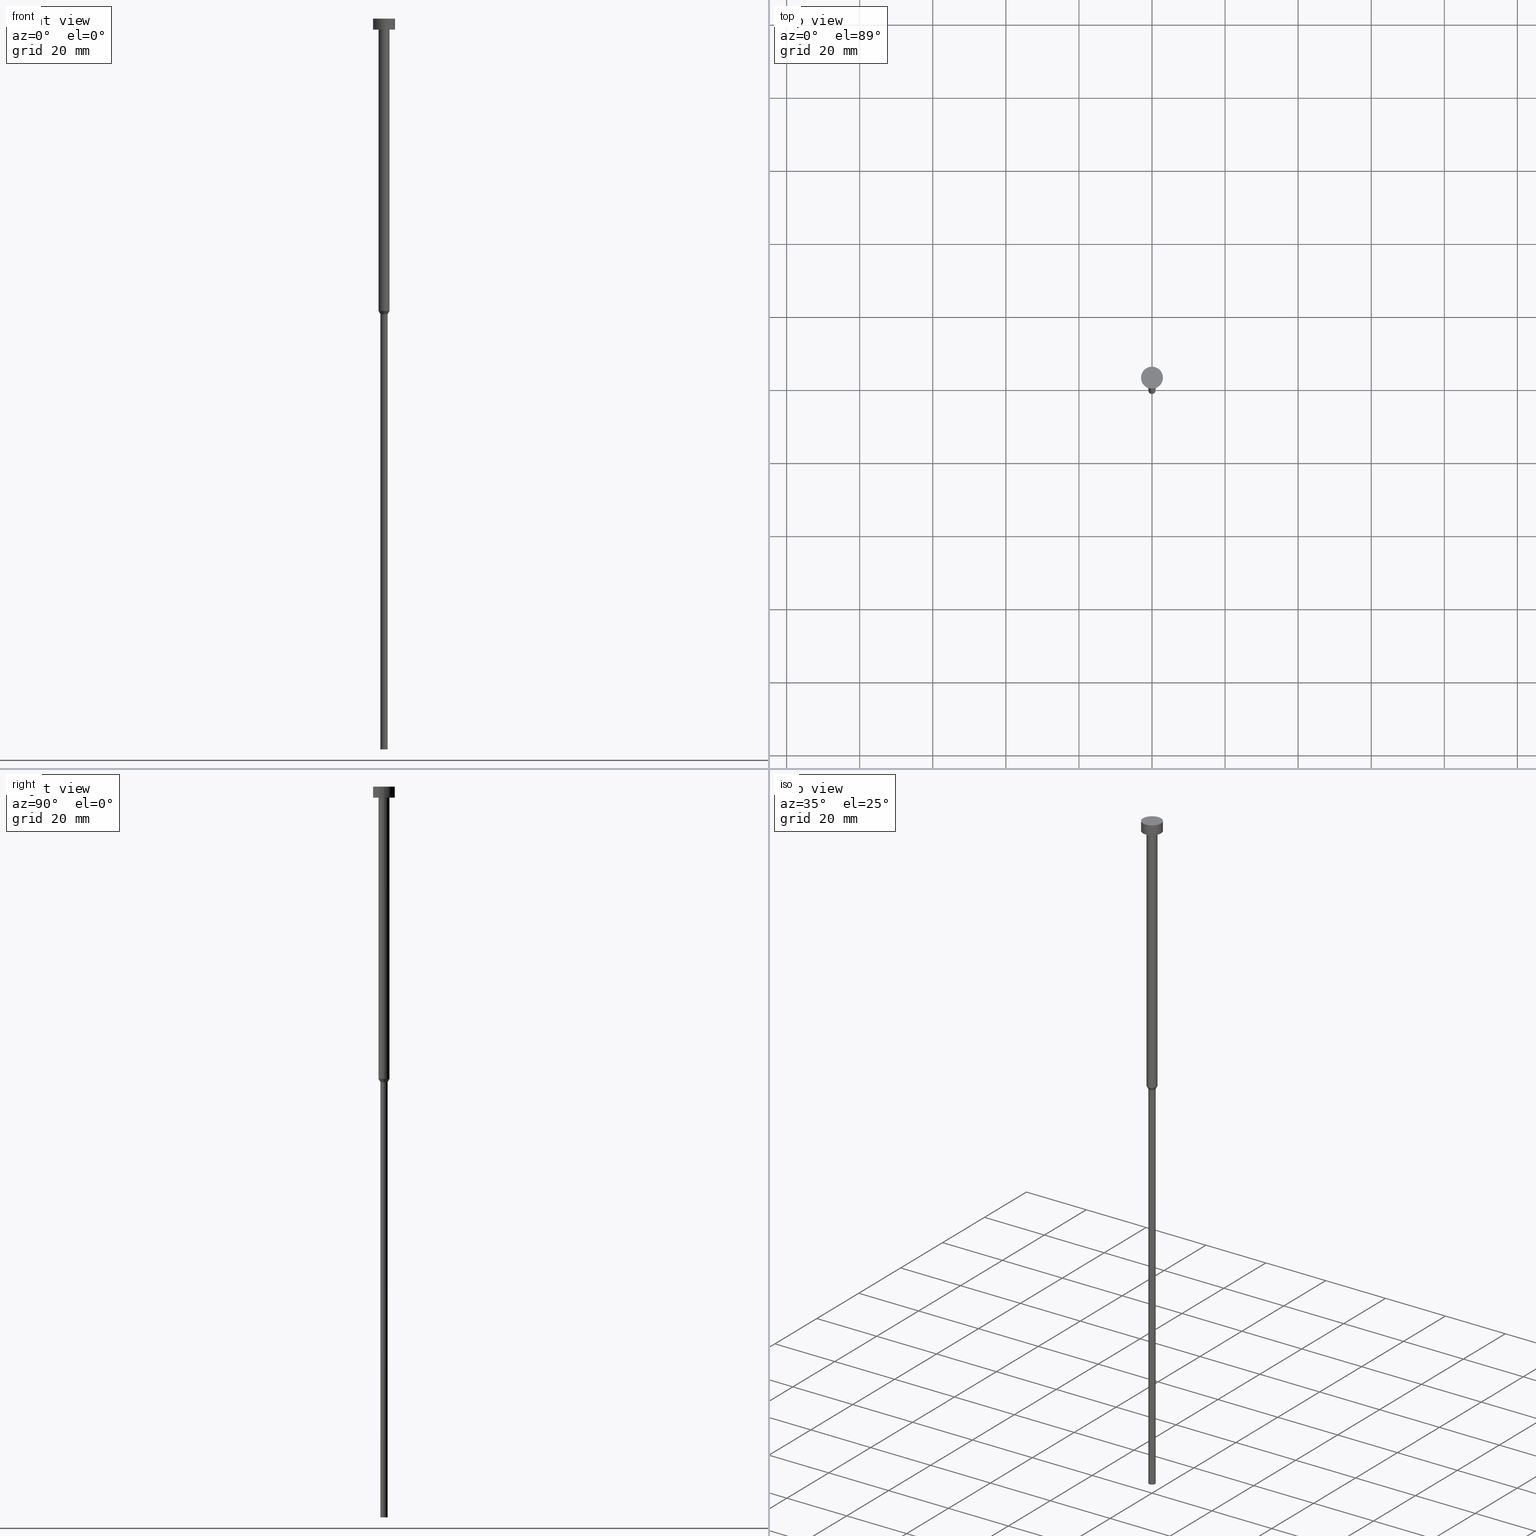
[diagram: canonical four-view strip — front | top / right | iso, engineering-drawing reading convention]
A machine part, canonical four-view strip (front | top / right | iso — engineering-drawing reading convention). The complete STEP part file that produces these views, byte-faithful:
ISO-10303-21;
HEADER;
FILE_DESCRIPTION (( 'STEP AP203' ),
    '1' );
FILE_NAME ('6f79.STEP',
    '2023-02-13T09:03:34',
    ( '' ),
    ( '' ),
    'SwSTEP 2.0',
    'SolidWorks 2019',
    '' );
FILE_SCHEMA (( 'CONFIG_CONTROL_DESIGN' ));
ENDSEC;

DATA;
#1 = DIRECTION ( 'NONE',  ( -0.000000000000000000, -0.000000000000000000, 1.000000000000000000 ) ) ;
#2 = DIRECTION ( 'NONE',  ( 1.000000000000000000, 0.000000000000000000, 0.000000000000000000 ) ) ;
#3 = DATE_TIME_ROLE ( 'creation_date' ) ;
#4 = CIRCLE ( 'NONE', #157, 1.500000000000000000 ) ;
#5 =( GEOMETRIC_REPRESENTATION_CONTEXT ( 3 ) GLOBAL_UNCERTAINTY_ASSIGNED_CONTEXT ( ( #168 ) ) GLOBAL_UNIT_ASSIGNED_CONTEXT ( ( #336, #310, #172 ) ) REPRESENTATION_CONTEXT ( 'NONE', 'WORKASPACE' ) );
#6 = VERTEX_POINT ( 'NONE', #198 ) ;
#7 = ORIENTED_EDGE ( 'NONE', *, *, #27, .F. ) ;
#8 = COORDINATED_UNIVERSAL_TIME_OFFSET ( 1, 0, .AHEAD. ) ;
#9 = EDGE_LOOP ( 'NONE', ( #236, #75 ) ) ;
#10 = CC_DESIGN_PERSON_AND_ORGANIZATION_ASSIGNMENT ( #66, #93, ( #38 ) ) ;
#11 = CIRCLE ( 'NONE', #229, 1.500000000000000000 ) ;
#12 = EDGE_LOOP ( 'NONE', ( #127, #45, #52, #292 ) ) ;
#13 = EDGE_CURVE ( 'NONE', #82, #241, #204, .T. ) ;
#14 = DIRECTION ( 'NONE',  ( -0.000000000000000000, -0.000000000000000000, 1.000000000000000000 ) ) ;
#15 = CARTESIAN_POINT ( 'NONE',  ( 3.000000000000000000, 0.000000000000000000, 0.000000000000000000 ) ) ;
#16 = FACE_OUTER_BOUND ( 'NONE', #146, .T. ) ;
#17 = ADVANCED_BREP_SHAPE_REPRESENTATION ( '6f79', ( #33, #132 ), #5 ) ;
#18 = PLANE ( 'NONE',  #215 ) ;
#19 = CARTESIAN_POINT ( 'NONE',  ( 0.000000000000000000, 0.000000000000000000, 0.000000000000000000 ) ) ;
#20 = CARTESIAN_POINT ( 'NONE',  ( 0.000000000000000000, 0.000000000000000000, -80.00000000000000000 ) ) ;
#21 = CARTESIAN_POINT ( 'NONE',  ( 1.000000000000000000, 0.000000000000000000, 0.000000000000000000 ) ) ;
#22 = PERSON ( 'NEUR�EN�', 'NEUR�EN�', 'NEUR�EN�', ('NEUR�EN�'), ('NEUR�EN�'), ('NEUR�EN�') ) ;
#23 = CC_DESIGN_DATE_AND_TIME_ASSIGNMENT ( #34, #3, ( #301 ) ) ;
#24 = DIRECTION ( 'NONE',  ( 0.000000000000000000, 0.000000000000000000, 1.000000000000000000 ) ) ;
#25 = ORIENTED_EDGE ( 'NONE', *, *, #201, .T. ) ;
#26 = ORIENTED_EDGE ( 'NONE', *, *, #101, .F. ) ;
#27 = EDGE_CURVE ( 'NONE', #133, #241, #78, .T. ) ;
#28 = FACE_OUTER_BOUND ( 'NONE', #179, .T. ) ;
#29 = PERSON_AND_ORGANIZATION ( #22, #65 ) ;
#30 = MECHANICAL_CONTEXT ( 'NONE', #187, 'mechanical' ) ;
#31 = APPLICATION_PROTOCOL_DEFINITION ( 'international standard', 'config_control_design', 1994, #245 ) ;
#32 = CIRCLE ( 'NONE', #163, 1.500000000000000000 ) ;
#33 = MANIFOLD_SOLID_BREP ( 'Rotovat1', #37 ) ;
#34 = DATE_AND_TIME ( #248, #182 ) ;
#35 = CALENDAR_DATE ( 2023, 13, 2 ) ;
#36 = CALENDAR_DATE ( 2023, 13, 2 ) ;
#37 = CLOSED_SHELL ( 'NONE', ( #238, #92, #128, #324, #338, #246, #67, #352, #210, #282, #217 ) ) ;
#38 = SECURITY_CLASSIFICATION ( '', '', #123 ) ;
#39 = FACE_OUTER_BOUND ( 'NONE', #197, .T. ) ;
#40 = FACE_OUTER_BOUND ( 'NONE', #231, .T. ) ;
#41 = COORDINATED_UNIVERSAL_TIME_OFFSET ( 1, 0, .AHEAD. ) ;
#42 = CARTESIAN_POINT ( 'NONE',  ( 1.000000000000000000, 0.000000000000000000, -80.86602540378444814 ) ) ;
#43 = DIRECTION ( 'NONE',  ( 1.000000000000000000, 0.000000000000000000, 0.000000000000000000 ) ) ;
#44 = PLANE ( 'NONE',  #355 ) ;
#45 = ORIENTED_EDGE ( 'NONE', *, *, #269, .T. ) ;
#46 = DIRECTION ( 'NONE',  ( -0.000000000000000000, -0.000000000000000000, 1.000000000000000000 ) ) ;
#47 = CARTESIAN_POINT ( 'NONE',  ( 0.000000000000000000, 0.000000000000000000, 0.000000000000000000 ) ) ;
#48 = VECTOR ( 'NONE', #74, 1000.000000000000114 ) ;
#49 = FACE_BOUND ( 'NONE', #309, .T. ) ;
#50 = DIRECTION ( 'NONE',  ( -0.000000000000000000, -0.000000000000000000, 1.000000000000000000 ) ) ;
#51 = ORIENTED_EDGE ( 'NONE', *, *, #76, .T. ) ;
#52 = ORIENTED_EDGE ( 'NONE', *, *, #181, .F. ) ;
#53 = AXIS2_PLACEMENT_3D ( 'NONE', #351, #118, #232 ) ;
#54 = DIRECTION ( 'NONE',  ( -0.000000000000000000, -0.000000000000000000, 1.000000000000000000 ) ) ;
#55 = APPROVAL_ROLE ( '' ) ;
#56 = DIRECTION ( 'NONE',  ( -0.000000000000000000, -0.000000000000000000, 1.000000000000000000 ) ) ;
#57 = VERTEX_POINT ( 'NONE', #274 ) ;
#58 = COORDINATED_UNIVERSAL_TIME_OFFSET ( 1, 0, .AHEAD. ) ;
#59 = DIRECTION ( 'NONE',  ( -0.000000000000000000, -0.000000000000000000, 1.000000000000000000 ) ) ;
#60 = APPROVAL_STATUS ( 'not_yet_approved' ) ;
#61 = EDGE_CURVE ( 'NONE', #241, #133, #316, .T. ) ;
#62 = ORIENTED_EDGE ( 'NONE', *, *, #158, .T. ) ;
#63 = SHAPE_DEFINITION_REPRESENTATION ( #306, #17 ) ;
#64 = AXIS2_PLACEMENT_3D ( 'NONE', #278, #249, #256 ) ;
#65 = ORGANIZATION ( 'NEUR�EN�', 'NEUR�EN�', '' ) ;
#66 = PERSON_AND_ORGANIZATION ( #22, #65 ) ;
#67 = ADVANCED_FACE ( 'NONE', ( #39 ), #194, .T. ) ;
#68 = ORIENTED_EDGE ( 'NONE', *, *, #334, .T. ) ;
#69 = LINE ( 'NONE', #21, #151 ) ;
#70 = AXIS2_PLACEMENT_3D ( 'NONE', #88, #331, #283 ) ;
#71 = PRODUCT_DEFINITION_FORMATION_WITH_SPECIFIED_SOURCE ( 'LIBOVOLN�', '', #171, .NOT_KNOWN. ) ;
#72 = FACE_OUTER_BOUND ( 'NONE', #111, .T. ) ;
#73 = ORIENTED_EDGE ( 'NONE', *, *, #181, .T. ) ;
#74 = DIRECTION ( 'NONE',  ( -0.4999999999999981681, 6.123233995736742617E-17, 0.8660254037844395958 ) ) ;
#75 = ORIENTED_EDGE ( 'NONE', *, *, #167, .F. ) ;
#76 = EDGE_CURVE ( 'NONE', #90, #6, #117, .T. ) ;
#77 = DIRECTION ( 'NONE',  ( -0.000000000000000000, -0.000000000000000000, 1.000000000000000000 ) ) ;
#78 = CIRCLE ( 'NONE', #102, 3.000000000000000000 ) ;
#79 = DIRECTION ( 'NONE',  ( 1.000000000000000000, 0.000000000000000000, 0.000000000000000000 ) ) ;
#80 = EDGE_CURVE ( 'NONE', #107, #133, #226, .T. ) ;
#81 = VERTEX_POINT ( 'NONE', #311 ) ;
#82 = VERTEX_POINT ( 'NONE', #203 ) ;
#83 = FACE_OUTER_BOUND ( 'NONE', #211, .T. ) ;
#84 = DIRECTION ( 'NONE',  ( -0.000000000000000000, -0.000000000000000000, 1.000000000000000000 ) ) ;
#85 = PLANE ( 'NONE',  #53 ) ;
#86 = AXIS2_PLACEMENT_3D ( 'NONE', #138, #54, #291 ) ;
#87 = APPROVAL_STATUS ( 'not_yet_approved' ) ;
#88 = CARTESIAN_POINT ( 'NONE',  ( 0.000000000000000000, 0.000000000000000000, 0.000000000000000000 ) ) ;
#89 = CC_DESIGN_PERSON_AND_ORGANIZATION_ASSIGNMENT ( #244, #122, ( #301 ) ) ;
#90 = VERTEX_POINT ( 'NONE', #42 ) ;
#91 = VECTOR ( 'NONE', #178, 1000.000000000000000 ) ;
#92 = ADVANCED_FACE ( 'NONE', ( #40 ), #254, .T. ) ;
#93 = PERSON_AND_ORGANIZATION_ROLE ( 'classification_officer' ) ;
#94 = PERSON_AND_ORGANIZATION ( #22, #65 ) ;
#95 = ORIENTED_EDGE ( 'NONE', *, *, #135, .F. ) ;
#96 = CIRCLE ( 'NONE', #304, 1.500000000000000000 ) ;
#97 = APPROVAL_DATE_TIME ( #290, #106 ) ;
#98 = DIRECTION ( 'NONE',  ( -0.000000000000000000, -0.000000000000000000, 1.000000000000000000 ) ) ;
#99 = CARTESIAN_POINT ( 'NONE',  ( 0.000000000000000000, 0.000000000000000000, -80.00000000000000000 ) ) ;
#100 = CARTESIAN_POINT ( 'NONE',  ( 1.000000000000000000, 0.000000000000000000, -200.0000000000000000 ) ) ;
#101 = EDGE_CURVE ( 'NONE', #341, #202, #206, .T. ) ;
#102 = AXIS2_PLACEMENT_3D ( 'NONE', #343, #98, #43 ) ;
#103 = EDGE_LOOP ( 'NONE', ( #153, #208, #307, #295 ) ) ;
#104 = ORIENTED_EDGE ( 'NONE', *, *, #61, .T. ) ;
#105 = LINE ( 'NONE', #327, #48 ) ;
#106 = APPROVAL ( #60, 'NEUR�EN�' ) ;
#107 = VERTEX_POINT ( 'NONE', #126 ) ;
#108 = DIRECTION ( 'NONE',  ( -0.000000000000000000, -0.000000000000000000, 1.000000000000000000 ) ) ;
#109 = EDGE_CURVE ( 'NONE', #90, #81, #273, .T. ) ;
#110 = DIRECTION ( 'NONE',  ( 1.000000000000000000, 0.000000000000000000, 0.000000000000000000 ) ) ;
#111 = EDGE_LOOP ( 'NONE', ( #257, #222, #62, #333 ) ) ;
#112 = EDGE_LOOP ( 'NONE', ( #95, #26 ) ) ;
#113 = DESIGN_CONTEXT ( 'detailed design', #245, 'design' ) ;
#114 = DIRECTION ( 'NONE',  ( 1.000000000000000000, 0.000000000000000000, 0.000000000000000000 ) ) ;
#115 = CARTESIAN_POINT ( 'NONE',  ( 0.000000000000000000, 0.000000000000000000, 0.000000000000000000 ) ) ;
#116 = CARTESIAN_POINT ( 'NONE',  ( 0.000000000000000000, 0.000000000000000000, 0.000000000000000000 ) ) ;
#117 = LINE ( 'NONE', #303, #147 ) ;
#118 = DIRECTION ( 'NONE',  ( 0.000000000000000000, 0.000000000000000000, -1.000000000000000000 ) ) ;
#119 = AXIS2_PLACEMENT_3D ( 'NONE', #121, #59, #2 ) ;
#120 = CARTESIAN_POINT ( 'NONE',  ( -1.000000000000000000, 1.224646799147353207E-16, 0.000000000000000000 ) ) ;
#121 = CARTESIAN_POINT ( 'NONE',  ( 0.000000000000000000, 0.000000000000000000, -3.673940397442059868E-16 ) ) ;
#122 = PERSON_AND_ORGANIZATION_ROLE ( 'creator' ) ;
#123 = SECURITY_CLASSIFICATION_LEVEL ( 'unclassified' ) ;
#124 = ORIENTED_EDGE ( 'NONE', *, *, #272, .T. ) ;
#125 = PERSON_AND_ORGANIZATION ( #22, #65 ) ;
#126 = CARTESIAN_POINT ( 'NONE',  ( 3.000000000000000000, 0.000000000000000000, -3.000000000000000888 ) ) ;
#127 = ORIENTED_EDGE ( 'NONE', *, *, #109, .T. ) ;
#128 = ADVANCED_FACE ( 'NONE', ( #134 ), #141, .T. ) ;
#129 = FACE_OUTER_BOUND ( 'NONE', #200, .T. ) ;
#130 = DIRECTION ( 'NONE',  ( 1.000000000000000000, 0.000000000000000000, 0.000000000000000000 ) ) ;
#131 = AXIS2_PLACEMENT_3D ( 'NONE', #20, #140, #261 ) ;
#132 = AXIS2_PLACEMENT_3D ( 'NONE', #176, #24, #258 ) ;
#133 = VERTEX_POINT ( 'NONE', #193 ) ;
#134 = FACE_OUTER_BOUND ( 'NONE', #12, .T. ) ;
#135 = EDGE_CURVE ( 'NONE', #202, #341, #335, .T. ) ;
#136 = DIRECTION ( 'NONE',  ( -1.000000000000000000, 0.000000000000000000, -0.000000000000000000 ) ) ;
#137 = ORIENTED_EDGE ( 'NONE', *, *, #201, .F. ) ;
#138 = CARTESIAN_POINT ( 'NONE',  ( 0.000000000000000000, 0.000000000000000000, -200.0000000000000000 ) ) ;
#139 = DATE_AND_TIME ( #145, #221 ) ;
#140 = DIRECTION ( 'NONE',  ( -0.000000000000000000, -0.000000000000000000, 1.000000000000000000 ) ) ;
#141 = CONICAL_SURFACE ( 'NONE', #64, 1.500000000000000000, 0.5235987755982968173 ) ;
#142 = ORIENTED_EDGE ( 'NONE', *, *, #80, .F. ) ;
#143 = ORIENTED_EDGE ( 'NONE', *, *, #175, .T. ) ;
#144 = DIRECTION ( 'NONE',  ( -0.000000000000000000, -0.000000000000000000, 1.000000000000000000 ) ) ;
#145 = CALENDAR_DATE ( 2023, 13, 2 ) ;
#146 = EDGE_LOOP ( 'NONE', ( #156, #286, #7, #142 ) ) ;
#147 = VECTOR ( 'NONE', #162, 1000.000000000000114 ) ;
#148 = CYLINDRICAL_SURFACE ( 'NONE', #297, 3.000000000000000000 ) ;
#149 = DATE_AND_TIME ( #240, #174 ) ;
#150 = PERSON_AND_ORGANIZATION_ROLE ( 'creator' ) ;
#151 = VECTOR ( 'NONE', #228, 1000.000000000000000 ) ;
#152 = AXIS2_PLACEMENT_3D ( 'NONE', #115, #1, #337 ) ;
#153 = ORIENTED_EDGE ( 'NONE', *, *, #13, .F. ) ;
#154 = DATE_AND_TIME ( #36, #266 ) ;
#155 = APPROVAL ( #87, 'NEUR�EN�' ) ;
#156 = ORIENTED_EDGE ( 'NONE', *, *, #242, .T. ) ;
#157 = AXIS2_PLACEMENT_3D ( 'NONE', #346, #50, #195 ) ;
#158 = EDGE_CURVE ( 'NONE', #202, #90, #69, .T. ) ;
#159 = DIRECTION ( 'NONE',  ( 0.000000000000000000, 0.000000000000000000, -1.000000000000000000 ) ) ;
#160 = DIRECTION ( 'NONE',  ( -0.000000000000000000, -0.000000000000000000, 1.000000000000000000 ) ) ;
#161 = CARTESIAN_POINT ( 'NONE',  ( 0.000000000000000000, 0.000000000000000000, -80.86602540378444814 ) ) ;
#162 = DIRECTION ( 'NONE',  ( 0.4999999999999981681, 0.000000000000000000, 0.8660254037844395958 ) ) ;
#163 = AXIS2_PLACEMENT_3D ( 'NONE', #169, #218, #277 ) ;
#164 = CC_DESIGN_APPROVAL ( #314, ( #38 ) ) ;
#165 = CARTESIAN_POINT ( 'NONE',  ( 0.000000000000000000, -3.000000000000000000, -3.000000000000000888 ) ) ;
#166 = ORIENTED_EDGE ( 'NONE', *, *, #27, .T. ) ;
#167 = EDGE_CURVE ( 'NONE', #82, #107, #279, .T. ) ;
#168 = UNCERTAINTY_MEASURE_WITH_UNIT (LENGTH_MEASURE( 1.000000000000000082E-05 ), #336, 'distance_accuracy_value', 'NONE');
#169 = CARTESIAN_POINT ( 'NONE',  ( 0.000000000000000000, 0.000000000000000000, -80.00000000000000000 ) ) ;
#170 = ORIENTED_EDGE ( 'NONE', *, *, #299, .T. ) ;
#171 = PRODUCT ( '6f79', '6f79', '', ( #30 ) ) ;
#172 =( NAMED_UNIT ( * ) SI_UNIT ( $, .STERADIAN. ) SOLID_ANGLE_UNIT ( ) );
#173 = ORIENTED_EDGE ( 'NONE', *, *, #269, .F. ) ;
#174 = LOCAL_TIME ( 10, 3, 34.00000000000000000, #342 ) ;
#175 = EDGE_CURVE ( 'NONE', #57, #263, #4, .T. ) ;
#176 = CARTESIAN_POINT ( 'NONE',  ( 0.000000000000000000, 0.000000000000000000, 0.000000000000000000 ) ) ;
#177 = PRODUCT_RELATED_PRODUCT_CATEGORY ( 'detail', '', ( #171 ) ) ;
#178 = DIRECTION ( 'NONE',  ( -0.000000000000000000, -0.000000000000000000, 1.000000000000000000 ) ) ;
#179 = EDGE_LOOP ( 'NONE', ( #191, #230, #268, #183 ) ) ;
#180 = APPLICATION_PROTOCOL_DEFINITION ( 'international standard', 'config_control_design', 1994, #187 ) ;
#181 = EDGE_CURVE ( 'NONE', #6, #296, #96, .T. ) ;
#182 = LOCAL_TIME ( 10, 3, 34.00000000000000000, #41 ) ;
#183 = ORIENTED_EDGE ( 'NONE', *, *, #158, .F. ) ;
#184 = PERSON_AND_ORGANIZATION_ROLE ( 'design_supplier' ) ;
#185 = AXIS2_PLACEMENT_3D ( 'NONE', #116, #205, #281 ) ;
#186 = APPROVAL_PERSON_ORGANIZATION ( #271, #106, #214 ) ;
#187 = APPLICATION_CONTEXT ( 'configuration controlled 3d designs of mechanical parts and assemblies' ) ;
#188 = DIRECTION ( 'NONE',  ( 1.000000000000000000, 0.000000000000000000, 0.000000000000000000 ) ) ;
#189 = VECTOR ( 'NONE', #56, 1000.000000000000000 ) ;
#190 = CARTESIAN_POINT ( 'NONE',  ( 0.000000000000000000, 0.000000000000000000, -1.836970198721029934E-16 ) ) ;
#191 = ORIENTED_EDGE ( 'NONE', *, *, #135, .T. ) ;
#192 = CARTESIAN_POINT ( 'NONE',  ( 0.000000000000000000, 0.000000000000000000, -3.000000000000000888 ) ) ;
#193 = CARTESIAN_POINT ( 'NONE',  ( 3.000000000000000000, 0.000000000000000000, -3.673940397442059868E-16 ) ) ;
#194 = CONICAL_SURFACE ( 'NONE', #131, 1.500000000000000000, 0.5235987755982968173 ) ;
#195 = DIRECTION ( 'NONE',  ( 1.000000000000000000, 0.000000000000000000, 0.000000000000000000 ) ) ;
#196 = CC_DESIGN_DATE_AND_TIME_ASSIGNMENT ( #154, #319, ( #38 ) ) ;
#197 = EDGE_LOOP ( 'NONE', ( #173, #68, #51, #137 ) ) ;
#198 = CARTESIAN_POINT ( 'NONE',  ( 1.500000000000000000, 0.000000000000000000, -80.00000000000000000 ) ) ;
#199 = FACE_OUTER_BOUND ( 'NONE', #112, .T. ) ;
#200 = EDGE_LOOP ( 'NONE', ( #166, #104 ) ) ;
#201 = EDGE_CURVE ( 'NONE', #296, #6, #32, .T. ) ;
#202 = VERTEX_POINT ( 'NONE', #100 ) ;
#203 = CARTESIAN_POINT ( 'NONE',  ( -3.000000000000000000, 3.673940397442059868E-16, -3.000000000000000888 ) ) ;
#204 = LINE ( 'NONE', #270, #247 ) ;
#205 = DIRECTION ( 'NONE',  ( -0.000000000000000000, -0.000000000000000000, 1.000000000000000000 ) ) ;
#206 = CIRCLE ( 'NONE', #86, 1.000000000000000000 ) ;
#207 = CC_DESIGN_PERSON_AND_ORGANIZATION_ASSIGNMENT ( #94, #150, ( #71 ) ) ;
#208 = ORIENTED_EDGE ( 'NONE', *, *, #167, .T. ) ;
#209 = APPROVAL_STATUS ( 'not_yet_approved' ) ;
#210 = ADVANCED_FACE ( 'NONE', ( #49, #298 ), #44, .T. ) ;
#211 = EDGE_LOOP ( 'NONE', ( #276, #25, #345, #260 ) ) ;
#212 = COORDINATED_UNIVERSAL_TIME_OFFSET ( 1, 0, .AHEAD. ) ;
#213 = AXIS2_PLACEMENT_3D ( 'NONE', #251, #302, #326 ) ;
#214 = APPROVAL_ROLE ( '' ) ;
#215 = AXIS2_PLACEMENT_3D ( 'NONE', #190, #275, #300 ) ;
#216 = APPROVAL_PERSON_ORGANIZATION ( #29, #155, #55 ) ;
#217 = ADVANCED_FACE ( 'NONE', ( #129 ), #18, .T. ) ;
#218 = DIRECTION ( 'NONE',  ( -0.000000000000000000, -0.000000000000000000, 1.000000000000000000 ) ) ;
#219 = CARTESIAN_POINT ( 'NONE',  ( -3.000000000000000000, 3.673940397442059868E-16, -3.673940397442059868E-16 ) ) ;
#220 = AXIS2_PLACEMENT_3D ( 'NONE', #47, #46, #250 ) ;
#221 = LOCAL_TIME ( 10, 3, 34.00000000000000000, #58 ) ;
#222 = ORIENTED_EDGE ( 'NONE', *, *, #101, .T. ) ;
#223 = CARTESIAN_POINT ( 'NONE',  ( 1.500000000000000000, 0.000000000000000000, 0.000000000000000000 ) ) ;
#224 = DIRECTION ( 'NONE',  ( -0.000000000000000000, -0.000000000000000000, 1.000000000000000000 ) ) ;
#225 = DIRECTION ( 'NONE',  ( 1.000000000000000000, 0.000000000000000000, 0.000000000000000000 ) ) ;
#226 = LINE ( 'NONE', #15, #293 ) ;
#227 = EDGE_CURVE ( 'NONE', #6, #263, #280, .T. ) ;
#228 = DIRECTION ( 'NONE',  ( -0.000000000000000000, -0.000000000000000000, 1.000000000000000000 ) ) ;
#229 = AXIS2_PLACEMENT_3D ( 'NONE', #192, #108, #225 ) ;
#230 = ORIENTED_EDGE ( 'NONE', *, *, #312, .T. ) ;
#231 = EDGE_LOOP ( 'NONE', ( #73, #170, #243, #234 ) ) ;
#232 = DIRECTION ( 'NONE',  ( -1.000000000000000000, 0.000000000000000000, -0.000000000000000000 ) ) ;
#233 = DIRECTION ( 'NONE',  ( 1.000000000000000000, 0.000000000000000000, 0.000000000000000000 ) ) ;
#234 = ORIENTED_EDGE ( 'NONE', *, *, #227, .F. ) ;
#235 = AXIS2_PLACEMENT_3D ( 'NONE', #161, #77, #349 ) ;
#236 = ORIENTED_EDGE ( 'NONE', *, *, #242, .F. ) ;
#237 = LINE ( 'NONE', #315, #91 ) ;
#238 = ADVANCED_FACE ( 'NONE', ( #16 ), #305, .T. ) ;
#239 = CIRCLE ( 'NONE', #284, 1.000000000000000000 ) ;
#240 = CALENDAR_DATE ( 2023, 13, 2 ) ;
#241 = VERTEX_POINT ( 'NONE', #219 ) ;
#242 = EDGE_CURVE ( 'NONE', #107, #82, #289, .T. ) ;
#243 = ORIENTED_EDGE ( 'NONE', *, *, #272, .F. ) ;
#244 = PERSON_AND_ORGANIZATION ( #22, #65 ) ;
#245 = APPLICATION_CONTEXT ( 'configuration controlled 3d designs of mechanical parts and assemblies' ) ;
#246 = ADVANCED_FACE ( 'NONE', ( #72 ), #348, .T. ) ;
#247 = VECTOR ( 'NONE', #224, 1000.000000000000000 ) ;
#248 = CALENDAR_DATE ( 2023, 13, 2 ) ;
#249 = DIRECTION ( 'NONE',  ( -0.000000000000000000, -0.000000000000000000, 1.000000000000000000 ) ) ;
#250 = DIRECTION ( 'NONE',  ( 1.000000000000000000, 0.000000000000000000, 0.000000000000000000 ) ) ;
#251 = CARTESIAN_POINT ( 'NONE',  ( 0.000000000000000000, 0.000000000000000000, -3.000000000000000888 ) ) ;
#252 = AXIS2_PLACEMENT_3D ( 'NONE', #323, #344, #110 ) ;
#253 = CC_DESIGN_SECURITY_CLASSIFICATION ( #38, ( #71 ) ) ;
#254 = CYLINDRICAL_SURFACE ( 'NONE', #185, 1.500000000000000000 ) ;
#255 = DIRECTION ( 'NONE',  ( -0.000000000000000000, -0.000000000000000000, 1.000000000000000000 ) ) ;
#256 = DIRECTION ( 'NONE',  ( 1.000000000000000000, 0.000000000000000000, 0.000000000000000000 ) ) ;
#257 = ORIENTED_EDGE ( 'NONE', *, *, #312, .F. ) ;
#258 = DIRECTION ( 'NONE',  ( 1.000000000000000000, 0.000000000000000000, 0.000000000000000000 ) ) ;
#259 = VECTOR ( 'NONE', #255, 1000.000000000000000 ) ;
#260 = ORIENTED_EDGE ( 'NONE', *, *, #175, .F. ) ;
#261 = DIRECTION ( 'NONE',  ( 1.000000000000000000, 0.000000000000000000, 0.000000000000000000 ) ) ;
#262 = CARTESIAN_POINT ( 'NONE',  ( 0.000000000000000000, 0.000000000000000000, 0.000000000000000000 ) ) ;
#263 = VERTEX_POINT ( 'NONE', #347 ) ;
#264 = CARTESIAN_POINT ( 'NONE',  ( -1.500000000000000000, 1.836970198721029934E-16, -80.00000000000000000 ) ) ;
#265 = CARTESIAN_POINT ( 'NONE',  ( -1.000000000000000000, 1.224646799147353207E-16, -200.0000000000000000 ) ) ;
#266 = LOCAL_TIME ( 10, 3, 34.00000000000000000, #8 ) ;
#267 = CYLINDRICAL_SURFACE ( 'NONE', #152, 1.500000000000000000 ) ;
#268 = ORIENTED_EDGE ( 'NONE', *, *, #109, .F. ) ;
#269 = EDGE_CURVE ( 'NONE', #81, #296, #105, .T. ) ;
#270 = CARTESIAN_POINT ( 'NONE',  ( -3.000000000000000000, 3.673940397442059868E-16, 0.000000000000000000 ) ) ;
#271 = PERSON_AND_ORGANIZATION ( #22, #65 ) ;
#272 = EDGE_CURVE ( 'NONE', #263, #57, #11, .T. ) ;
#273 = CIRCLE ( 'NONE', #235, 1.000000000000000000 ) ;
#274 = CARTESIAN_POINT ( 'NONE',  ( -1.500000000000000000, 1.836970198721029934E-16, -3.000000000000000888 ) ) ;
#275 = DIRECTION ( 'NONE',  ( 0.000000000000000000, -0.000000000000000000, 1.000000000000000000 ) ) ;
#276 = ORIENTED_EDGE ( 'NONE', *, *, #299, .F. ) ;
#277 = DIRECTION ( 'NONE',  ( 1.000000000000000000, 0.000000000000000000, 0.000000000000000000 ) ) ;
#278 = CARTESIAN_POINT ( 'NONE',  ( 0.000000000000000000, 0.000000000000000000, -80.00000000000000000 ) ) ;
#279 = CIRCLE ( 'NONE', #320, 3.000000000000000000 ) ;
#280 = LINE ( 'NONE', #223, #259 ) ;
#281 = DIRECTION ( 'NONE',  ( 1.000000000000000000, 0.000000000000000000, 0.000000000000000000 ) ) ;
#282 = ADVANCED_FACE ( 'NONE', ( #328 ), #148, .T. ) ;
#283 = DIRECTION ( 'NONE',  ( 1.000000000000000000, 0.000000000000000000, 0.000000000000000000 ) ) ;
#284 = AXIS2_PLACEMENT_3D ( 'NONE', #353, #332, #114 ) ;
#285 = LOCAL_TIME ( 10, 3, 34.00000000000000000, #212 ) ;
#286 = ORIENTED_EDGE ( 'NONE', *, *, #13, .T. ) ;
#287 = PERSON_AND_ORGANIZATION_ROLE ( 'design_owner' ) ;
#288 = LINE ( 'NONE', #120, #189 ) ;
#289 = CIRCLE ( 'NONE', #213, 3.000000000000000000 ) ;
#290 = DATE_AND_TIME ( #35, #285 ) ;
#291 = DIRECTION ( 'NONE',  ( 1.000000000000000000, 0.000000000000000000, 0.000000000000000000 ) ) ;
#292 = ORIENTED_EDGE ( 'NONE', *, *, #76, .F. ) ;
#293 = VECTOR ( 'NONE', #84, 1000.000000000000000 ) ;
#294 = APPROVAL_ROLE ( '' ) ;
#295 = ORIENTED_EDGE ( 'NONE', *, *, #61, .F. ) ;
#296 = VERTEX_POINT ( 'NONE', #264 ) ;
#297 = AXIS2_PLACEMENT_3D ( 'NONE', #262, #144, #233 ) ;
#298 = FACE_OUTER_BOUND ( 'NONE', #9, .T. ) ;
#299 = EDGE_CURVE ( 'NONE', #296, #57, #237, .T. ) ;
#300 = DIRECTION ( 'NONE',  ( 1.000000000000000000, 0.000000000000000000, 0.000000000000000000 ) ) ;
#301 = PRODUCT_DEFINITION ( 'NEZN�M�', '', #71, #113 ) ;
#302 = DIRECTION ( 'NONE',  ( -0.000000000000000000, -0.000000000000000000, 1.000000000000000000 ) ) ;
#303 = CARTESIAN_POINT ( 'NONE',  ( 1.500000000000000000, 0.000000000000000000, -80.00000000000000000 ) ) ;
#304 = AXIS2_PLACEMENT_3D ( 'NONE', #99, #308, #188 ) ;
#305 = CYLINDRICAL_SURFACE ( 'NONE', #220, 3.000000000000000000 ) ;
#306 = PRODUCT_DEFINITION_SHAPE ( 'NONE', 'NONE',  #301 ) ;
#307 = ORIENTED_EDGE ( 'NONE', *, *, #80, .T. ) ;
#308 = DIRECTION ( 'NONE',  ( -0.000000000000000000, -0.000000000000000000, 1.000000000000000000 ) ) ;
#309 = EDGE_LOOP ( 'NONE', ( #124, #143 ) ) ;
#310 =( NAMED_UNIT ( * ) PLANE_ANGLE_UNIT ( ) SI_UNIT ( $, .RADIAN. ) );
#311 = CARTESIAN_POINT ( 'NONE',  ( -1.000000000000000000, 1.224646799147353207E-16, -80.86602540378444814 ) ) ;
#312 = EDGE_CURVE ( 'NONE', #341, #81, #288, .T. ) ;
#313 = CYLINDRICAL_SURFACE ( 'NONE', #70, 1.000000000000000000 ) ;
#314 = APPROVAL ( #209, 'NEUR�EN�' ) ;
#315 = CARTESIAN_POINT ( 'NONE',  ( -1.500000000000000000, 1.836970198721029934E-16, 0.000000000000000000 ) ) ;
#316 = CIRCLE ( 'NONE', #119, 3.000000000000000000 ) ;
#317 = CC_DESIGN_APPROVAL ( #155, ( #301 ) ) ;
#318 = CC_DESIGN_PERSON_AND_ORGANIZATION_ASSIGNMENT ( #322, #184, ( #71 ) ) ;
#319 = DATE_TIME_ROLE ( 'classification_date' ) ;
#320 = AXIS2_PLACEMENT_3D ( 'NONE', #330, #14, #79 ) ;
#321 = CC_DESIGN_APPROVAL ( #106, ( #71 ) ) ;
#322 = PERSON_AND_ORGANIZATION ( #22, #65 ) ;
#323 = CARTESIAN_POINT ( 'NONE',  ( 0.000000000000000000, 0.000000000000000000, -200.0000000000000000 ) ) ;
#324 = ADVANCED_FACE ( 'NONE', ( #28 ), #313, .T. ) ;
#325 = APPROVAL_PERSON_ORGANIZATION ( #125, #314, #294 ) ;
#326 = DIRECTION ( 'NONE',  ( 1.000000000000000000, 0.000000000000000000, 0.000000000000000000 ) ) ;
#327 = CARTESIAN_POINT ( 'NONE',  ( -1.500000000000000000, 1.836970198721029934E-16, -80.00000000000000000 ) ) ;
#328 = FACE_OUTER_BOUND ( 'NONE', #103, .T. ) ;
#329 = AXIS2_PLACEMENT_3D ( 'NONE', #19, #160, #130 ) ;
#330 = CARTESIAN_POINT ( 'NONE',  ( 0.000000000000000000, 0.000000000000000000, -3.000000000000000888 ) ) ;
#331 = DIRECTION ( 'NONE',  ( -0.000000000000000000, -0.000000000000000000, 1.000000000000000000 ) ) ;
#332 = DIRECTION ( 'NONE',  ( -0.000000000000000000, -0.000000000000000000, 1.000000000000000000 ) ) ;
#333 = ORIENTED_EDGE ( 'NONE', *, *, #334, .F. ) ;
#334 = EDGE_CURVE ( 'NONE', #81, #90, #239, .T. ) ;
#335 = CIRCLE ( 'NONE', #252, 1.000000000000000000 ) ;
#336 =( LENGTH_UNIT ( ) NAMED_UNIT ( * ) SI_UNIT ( .MILLI., .METRE. ) );
#337 = DIRECTION ( 'NONE',  ( 1.000000000000000000, 0.000000000000000000, 0.000000000000000000 ) ) ;
#338 = ADVANCED_FACE ( 'NONE', ( #199 ), #85, .T. ) ;
#339 = CC_DESIGN_PERSON_AND_ORGANIZATION_ASSIGNMENT ( #354, #287, ( #171 ) ) ;
#340 = APPROVAL_DATE_TIME ( #149, #314 ) ;
#341 = VERTEX_POINT ( 'NONE', #265 ) ;
#342 = COORDINATED_UNIVERSAL_TIME_OFFSET ( 1, 0, .AHEAD. ) ;
#343 = CARTESIAN_POINT ( 'NONE',  ( 0.000000000000000000, 0.000000000000000000, -3.673940397442059868E-16 ) ) ;
#344 = DIRECTION ( 'NONE',  ( -0.000000000000000000, -0.000000000000000000, 1.000000000000000000 ) ) ;
#345 = ORIENTED_EDGE ( 'NONE', *, *, #227, .T. ) ;
#346 = CARTESIAN_POINT ( 'NONE',  ( 0.000000000000000000, 0.000000000000000000, -3.000000000000000888 ) ) ;
#347 = CARTESIAN_POINT ( 'NONE',  ( 1.500000000000000000, 0.000000000000000000, -3.000000000000000888 ) ) ;
#348 = CYLINDRICAL_SURFACE ( 'NONE', #329, 1.000000000000000000 ) ;
#349 = DIRECTION ( 'NONE',  ( 1.000000000000000000, 0.000000000000000000, 0.000000000000000000 ) ) ;
#350 = APPROVAL_DATE_TIME ( #139, #155 ) ;
#351 = CARTESIAN_POINT ( 'NONE',  ( 0.000000000000000000, 0.000000000000000000, -200.0000000000000000 ) ) ;
#352 = ADVANCED_FACE ( 'NONE', ( #83 ), #267, .T. ) ;
#353 = CARTESIAN_POINT ( 'NONE',  ( 0.000000000000000000, 0.000000000000000000, -80.86602540378444814 ) ) ;
#354 = PERSON_AND_ORGANIZATION ( #22, #65 ) ;
#355 = AXIS2_PLACEMENT_3D ( 'NONE', #165, #159, #136 ) ;
ENDSEC;
END-ISO-10303-21;
